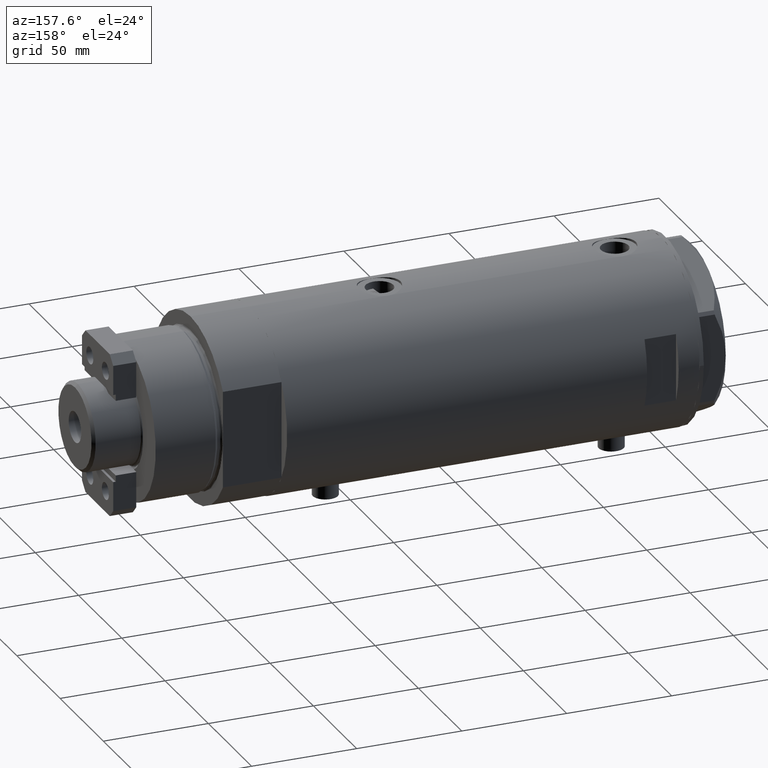
[diagram: clean part render]
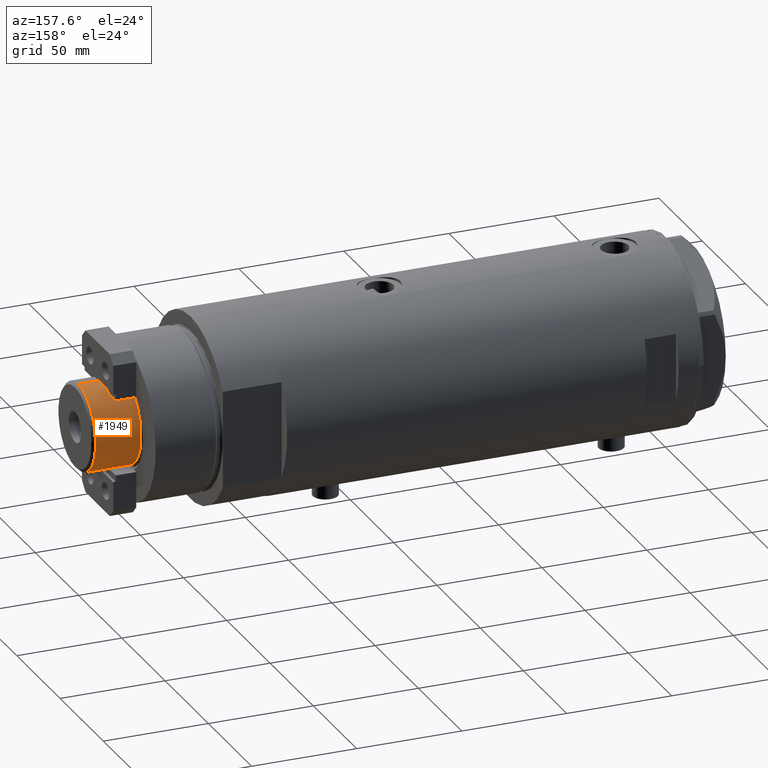
[diagram: same view with one face highlighted and labeled with its STEP entity id]
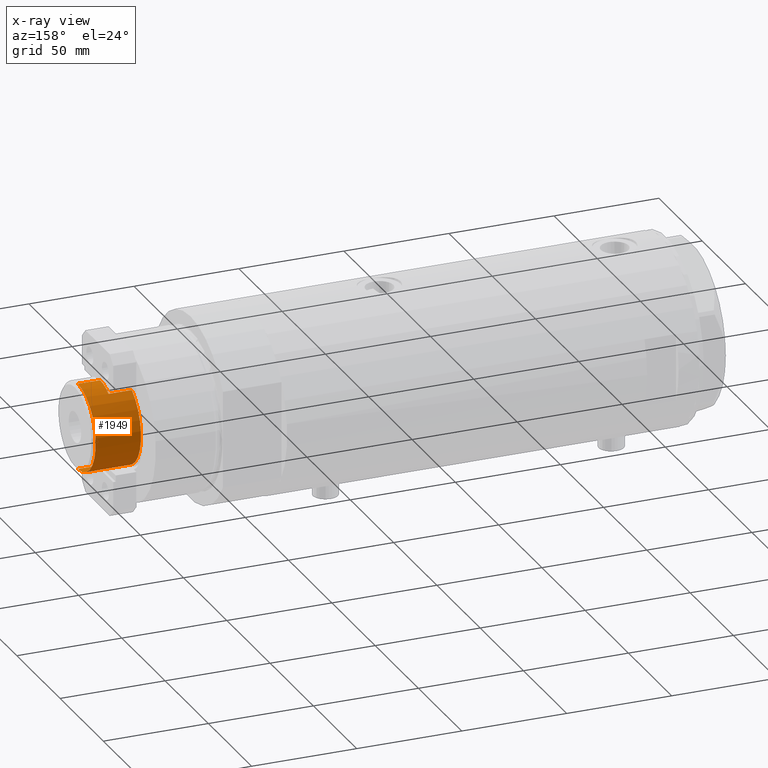
[diagram: x-ray of the same camera — body ghosted, the highlighted face saturated]
A machine part, auxiliary view. The second image highlights one B-rep face of the part: STEP entity #1949.
The next image is the same camera in x-ray: the body ghosted, the highlighted face saturated — about 0% of this face is hidden behind the body in this view.
In plain terms, the highlighted cylindrical surface (partial cylindrical patch) has radius 20.5 mm, axis along (-1, -0, 0).
Its self-contained STEP definition (entity closure, byte-faithful):
#165 = DIRECTION ( 'NONE',  ( 1.000000000000000000, 0.000000000000000000, 0.000000000000000000 ) ) ;
#234 = DIRECTION ( 'NONE',  ( 1.000000000000000000, 0.000000000000000000, 0.000000000000000000 ) ) ;
#313 = CARTESIAN_POINT ( 'NONE',  ( 17.97852886083842705, 9.849999999999997868, 230.3000000000000114 ) ) ;
#378 = CARTESIAN_POINT ( 'NONE',  ( 20.50000000000000000, 2.510525938252074481E-15, 241.3000000000000114 ) ) ;
#400 = ORIENTED_EDGE ( 'NONE', *, *, #4846, .T. ) ;
#506 = VERTEX_POINT ( 'NONE', #2330 ) ;
#605 = CARTESIAN_POINT ( 'NONE',  ( 0.000000000000000000, 0.000000000000000000, 230.3000000000000114 ) ) ;
#851 = DIRECTION ( 'NONE',  ( 0.000000000000000000, 0.000000000000000000, -1.000000000000000000 ) ) ;
#911 = CIRCLE ( 'NONE', #1513, 20.49999999999998934 ) ;
#919 = VECTOR ( 'NONE', #4207, 1000.000000000000000 ) ;
#921 = LINE ( 'NONE', #3807, #919 ) ;
#1041 = DIRECTION ( 'NONE',  ( -0.000000000000000000, -0.000000000000000000, -1.000000000000000000 ) ) ;
#1065 = DIRECTION ( 'NONE',  ( -0.000000000000000000, -0.000000000000000000, -1.000000000000000000 ) ) ;
#1177 = CARTESIAN_POINT ( 'NONE',  ( -17.97852886083842705, 9.849999999999965894, 230.3000000000000114 ) ) ;
#1259 = ORIENTED_EDGE ( 'NONE', *, *, #4867, .T. ) ;
#1310 = EDGE_LOOP ( 'NONE', ( #2522, #1420, #400, #2269, #4777, #4239, #1259, #2657 ) ) ;
#1320 = CARTESIAN_POINT ( 'NONE',  ( -20.50000000000000000, 0.000000000000000000, 241.3000000000000114 ) ) ;
#1348 = AXIS2_PLACEMENT_3D ( 'NONE', #1712, #2979, #4212 ) ;
#1391 = CARTESIAN_POINT ( 'NONE',  ( 17.97852886083842705, 9.849999999999997868, 241.3000000000000114 ) ) ;
#1420 = ORIENTED_EDGE ( 'NONE', *, *, #3787, .T. ) ;
#1450 = DIRECTION ( 'NONE',  ( 0.000000000000000000, 0.000000000000000000, 1.000000000000000000 ) ) ;
#1513 = AXIS2_PLACEMENT_3D ( 'NONE', #605, #1450, #234 ) ;
#1675 = EDGE_CURVE ( 'NONE', #5139, #1865, #911, .T. ) ;
#1690 = VECTOR ( 'NONE', #1041, 1000.000000000000000 ) ;
#1696 = CIRCLE ( 'NONE', #4661, 20.50000000000000355 ) ;
#1712 = CARTESIAN_POINT ( 'NONE',  ( 0.000000000000000000, 0.000000000000000000, 241.3000000000000114 ) ) ;
#1865 = VERTEX_POINT ( 'NONE', #1177 ) ;
#1880 = CARTESIAN_POINT ( 'NONE',  ( -20.50000000000000355, 0.000000000000000000, 241.3000000000000114 ) ) ;
#1949 = ADVANCED_FACE ( 'NONE', ( #2603 ), #2580, .T. ) ;
#1956 = AXIS2_PLACEMENT_3D ( 'NONE', #3430, #2211, #3851 ) ;
#2211 = DIRECTION ( 'NONE',  ( 0.000000000000000000, 0.000000000000000000, 1.000000000000000000 ) ) ;
#2269 = ORIENTED_EDGE ( 'NONE', *, *, #2412, .T. ) ;
#2296 = CIRCLE ( 'NONE', #1956, 20.50000000000000000 ) ;
#2330 = CARTESIAN_POINT ( 'NONE',  ( -20.50000000000000355, 0.000000000000000000, 251.9000000000001194 ) ) ;
#2336 = VERTEX_POINT ( 'NONE', #378 ) ;
#2412 = EDGE_CURVE ( 'NONE', #3639, #5139, #4895, .T. ) ;
#2522 = ORIENTED_EDGE ( 'NONE', *, *, #2772, .T. ) ;
#2580 = CYLINDRICAL_SURFACE ( 'NONE', #1348, 20.50000000000000355 ) ;
#2598 = DIRECTION ( 'NONE',  ( -0.000000000000000000, -0.000000000000000000, -1.000000000000000000 ) ) ;
#2603 = FACE_OUTER_BOUND ( 'NONE', #1310, .T. ) ;
#2657 = ORIENTED_EDGE ( 'NONE', *, *, #3735, .F. ) ;
#2735 = AXIS2_PLACEMENT_3D ( 'NONE', #3020, #4741, #165 ) ;
#2772 = EDGE_CURVE ( 'NONE', #506, #3625, #1696, .T. ) ;
#2889 = CARTESIAN_POINT ( 'NONE',  ( 17.97852886083842705, 9.849999999999997868, 241.3000000000000114 ) ) ;
#2979 = DIRECTION ( 'NONE',  ( -0.000000000000000000, -0.000000000000000000, -1.000000000000000000 ) ) ;
#2989 = VECTOR ( 'NONE', #2598, 1000.000000000000000 ) ;
#3020 = CARTESIAN_POINT ( 'NONE',  ( 0.000000000000000000, 0.000000000000000000, 241.3000000000000114 ) ) ;
#3083 = VECTOR ( 'NONE', #1065, 1000.000000000000000 ) ;
#3172 = CARTESIAN_POINT ( 'NONE',  ( 20.50000000000000355, 2.510525938252074481E-15, 241.3000000000000114 ) ) ;
#3287 = DIRECTION ( 'NONE',  ( 1.000000000000000000, 0.000000000000000000, 0.000000000000000000 ) ) ;
#3314 = CARTESIAN_POINT ( 'NONE',  ( 0.000000000000000000, 0.000000000000000000, 251.9000000000001194 ) ) ;
#3324 = CARTESIAN_POINT ( 'NONE',  ( 20.50000000000000355, 2.510525938252074481E-15, 251.9000000000001194 ) ) ;
#3430 = CARTESIAN_POINT ( 'NONE',  ( 0.000000000000000000, 0.000000000000000000, 241.3000000000000114 ) ) ;
#3625 = VERTEX_POINT ( 'NONE', #3324 ) ;
#3639 = VERTEX_POINT ( 'NONE', #1391 ) ;
#3669 = VERTEX_POINT ( 'NONE', #4265 ) ;
#3735 = EDGE_CURVE ( 'NONE', #506, #5019, #5144, .T. ) ;
#3787 = EDGE_CURVE ( 'NONE', #3625, #2336, #4715, .T. ) ;
#3807 = CARTESIAN_POINT ( 'NONE',  ( -17.97852886083842705, 9.849999999999997868, 241.3000000000000114 ) ) ;
#3851 = DIRECTION ( 'NONE',  ( 1.000000000000000000, 0.000000000000000000, 0.000000000000000000 ) ) ;
#4207 = DIRECTION ( 'NONE',  ( -0.000000000000000000, -0.000000000000000000, -1.000000000000000000 ) ) ;
#4212 = DIRECTION ( 'NONE',  ( -1.000000000000000000, 0.000000000000000000, 0.000000000000000000 ) ) ;
#4239 = ORIENTED_EDGE ( 'NONE', *, *, #4415, .F. ) ;
#4265 = CARTESIAN_POINT ( 'NONE',  ( -17.97852886083842705, 9.849999999999997868, 241.3000000000000114 ) ) ;
#4415 = EDGE_CURVE ( 'NONE', #3669, #1865, #921, .T. ) ;
#4661 = AXIS2_PLACEMENT_3D ( 'NONE', #3314, #851, #3287 ) ;
#4715 = LINE ( 'NONE', #3172, #3083 ) ;
#4741 = DIRECTION ( 'NONE',  ( 0.000000000000000000, 0.000000000000000000, 1.000000000000000000 ) ) ;
#4777 = ORIENTED_EDGE ( 'NONE', *, *, #1675, .T. ) ;
#4846 = EDGE_CURVE ( 'NONE', #2336, #3639, #2296, .T. ) ;
#4867 = EDGE_CURVE ( 'NONE', #3669, #5019, #5023, .T. ) ;
#4895 = LINE ( 'NONE', #2889, #2989 ) ;
#5019 = VERTEX_POINT ( 'NONE', #1320 ) ;
#5023 = CIRCLE ( 'NONE', #2735, 20.50000000000000000 ) ;
#5139 = VERTEX_POINT ( 'NONE', #313 ) ;
#5144 = LINE ( 'NONE', #1880, #1690 ) ;